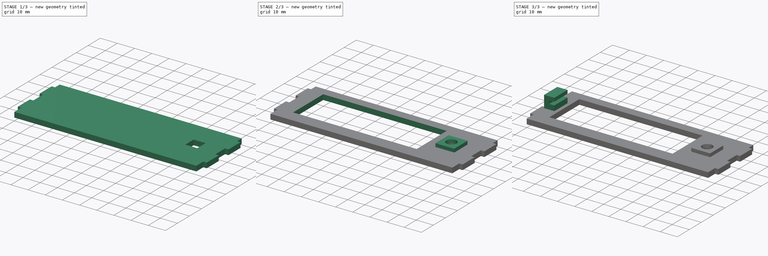
[diagram: build sequence overview — one tinted view per stage of 3, left to right]
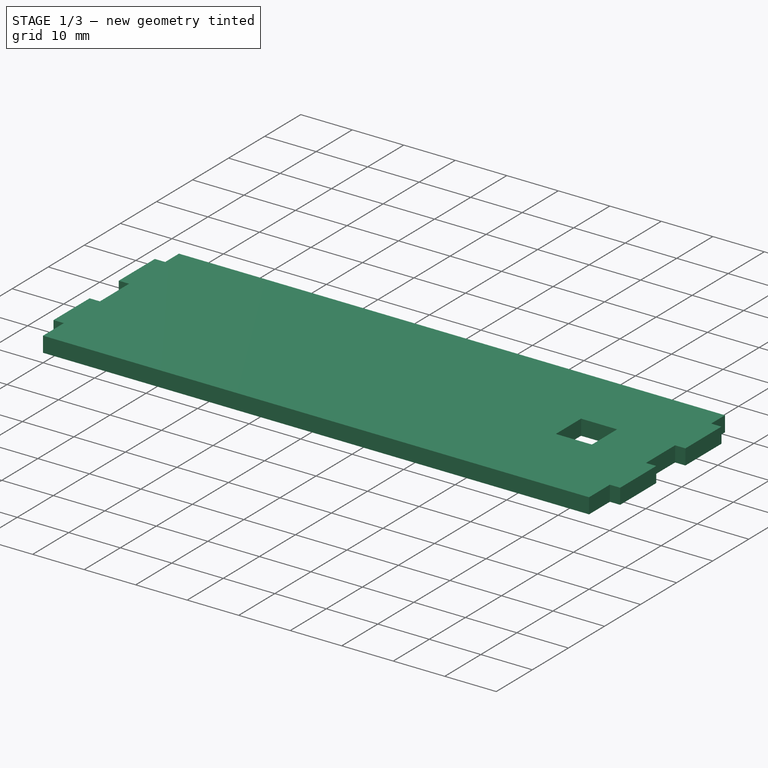
[diagram: stage 1 of 3 — iso view after this stage's code; geometry added in this stage tinted green]
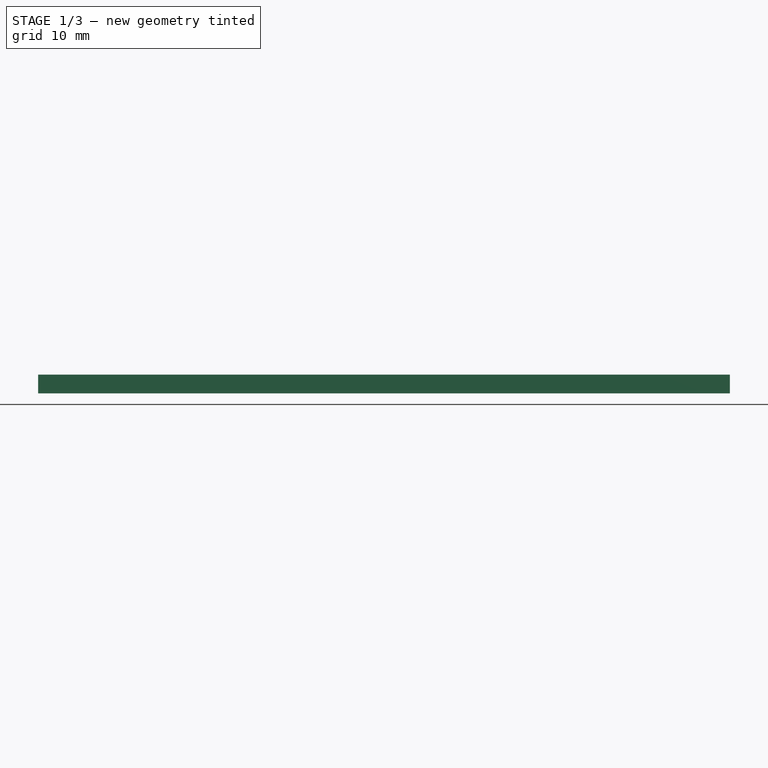
[diagram: stage 1 of 3 — front view after this stage's code; geometry added in this stage tinted green]
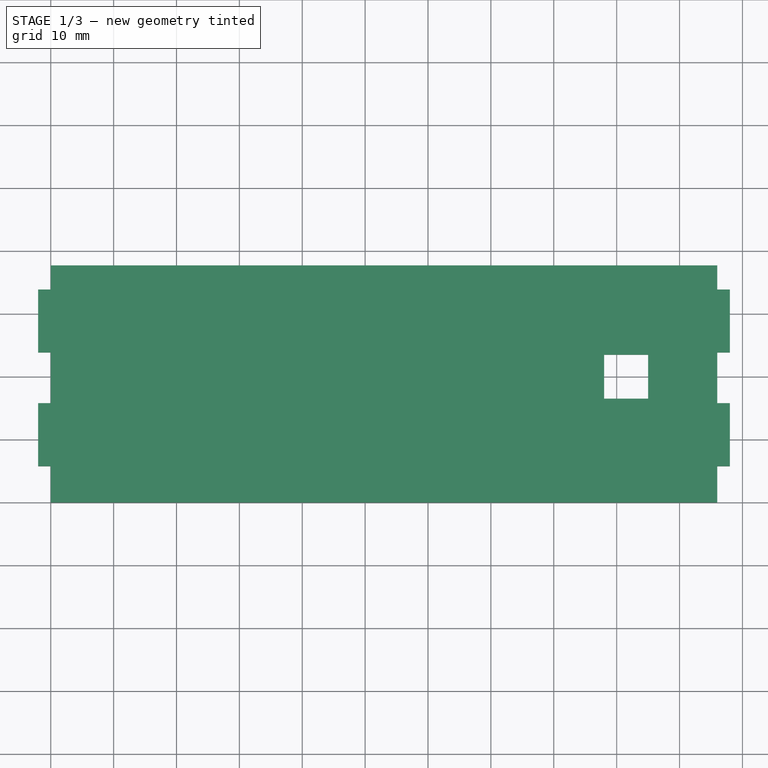
[diagram: stage 1 of 3 — top view after this stage's code; geometry added in this stage tinted green]
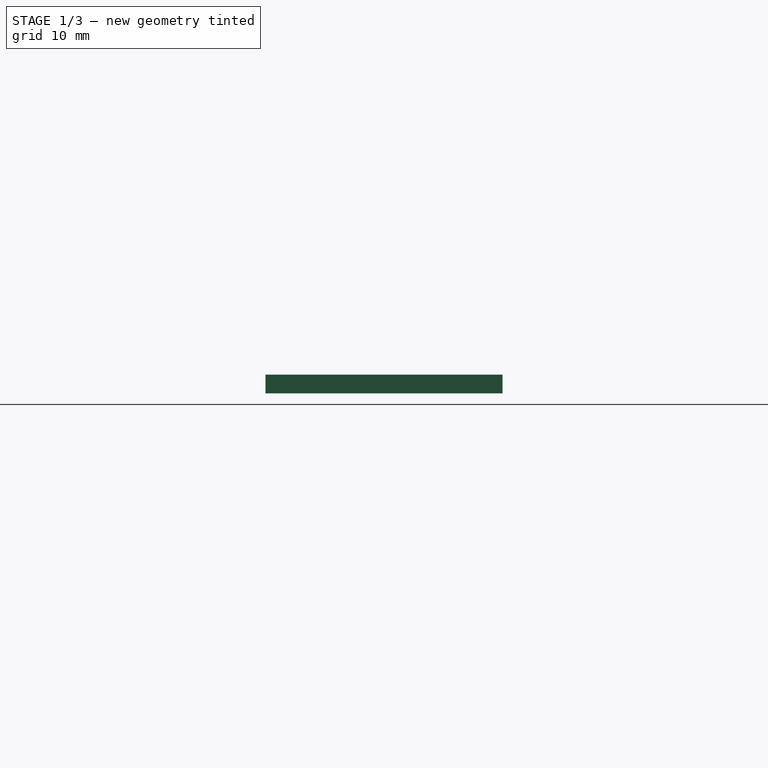
[diagram: stage 1 of 3 — right view after this stage's code; geometry added in this stage tinted green]
FCSTD DOCUMENT  (FreeCAD 0.18R16131 (Git))
Label: Face
License: All rights reserved
LicenseURL: http://en.wikipedia.org/wiki/All_rights_reserved
objects: Sketcher::SketchObject×6, PartDesign::Pad×3, PartDesign::Pocket×3, Spreadsheet::Sheet×1, PartDesign::Body×1
note: 19 computed .brp shape members not serialized (recipe doc carries the construction recipe); baked Part::Feature solids carry a one-line shape summary decoded from their .brp

FEATURE [Spreadsheet::Sheet] Spreadsheet  label="Parameters"
  cells = A1=Main Body; D1=Arduino Nano; A2=shell; B2(shell)=2; D2=usb_width; E2=10; A3=lenX; B3(lenX)=110; D3=usb_height; E3=6; A4=lenY; B4(lenY)=140; D4=usb_upto; E4=16; A5=lenZ; B5(lenZ)=25; D5=width; E5=18; A6=front_fillet_radius; B6=3; A7=base_fillet_radius; B7=45; D7=Button; D8=width; E8(button_width)=6; A9=Screen; D9=height; E9(button_height)=3; A10=height; B10(screen_height)=40; A11=width; B11(screen_width)=80; A12=pcb_thickness; B12(screen_pcb_thickness)=2; A13=extra_thickness; B13(screen_extra_thickness)=3; A14=border; B14(screen_border)=7; A15=cutout_width; B15(screen_cutout_width)=72; A16=cutout_height; B16(screen_cutout_height)=25; A17=angle; B17(screen_angle)=30; A18=tab_spacing; B18(screen_tab_spacing)=7; A19=plate_center; B19=115; A20=tab_height; B20(screen_tab_height)=3; A21=tab_width; B21(screen_tab_width)=10; A23=M4 Screw; A24=head_diam; B24=9; A25=head_height; B25=4.4; A26=thru_diam; B26=5; A27=M5 Screw; A28=head_diam; B28=10; A29=head_height; B29=5.4; A30=thru_diam; B30=6.25; A32=TAL220; A33=hole_spacing; B33=15; A34=standoff_height; B34=10; A35=to_center; B35=62.5; C35=Measured from first M5 to between the 2 m4s; A37=TAL221; A38=hole_spacing; B38=6
FEATURE [Sketcher::SketchObject] Sketch
  MapMode = 5
  Support = -> [XY_Plane]
  expr: Constraints[30] = Parameters.screen_tab_spacing / cos(Parameters.screen_angle)
  expr: Constraints[27] = Parameters.screen_tab_spacing / cos(Parameters.screen_angle) - Parameters.shell / cos(Parameters.screen_angle)
  expr: Constraints[17] = Parameters.screen_tab_width
  expr: Constraints[9] = Parameters.lenX - 2 * Parameters.shell
  expr: Constraints[16] = Parameters.shell
  expr: Constraints[10] = Parameters.screen_height - Parameters.shell / cos(Parameters.screen_angle)
  sketch-geometry (20):
    g0: LineSegment StartX=0 StartY=37.6906 StartZ=0 EndX=106 EndY=37.6906 EndZ=0
    g1: LineSegment StartX=106 StartY=37.6906 StartZ=0 EndX=106 EndY=33.8564 EndZ=0
    g2: LineSegment StartX=106 StartY=0 StartZ=0 EndX=0 EndY=0 EndZ=0
    g3: LineSegment StartX=0 StartY=0 StartZ=0 EndX=0 EndY=5.7735 EndZ=0
    g4: LineSegment StartX=-2 StartY=15.7735 StartZ=0 EndX=0 EndY=15.7735 EndZ=0
    g5: LineSegment StartX=0 StartY=5.7735 StartZ=0 EndX=-2 EndY=5.7735 EndZ=0
    g6: LineSegment StartX=-2 StartY=5.7735 StartZ=0 EndX=-2 EndY=15.7735 EndZ=0
    g7: LineSegment StartX=-2 StartY=33.8564 StartZ=0 EndX=0 EndY=33.8564 EndZ=0
    g8: LineSegment StartX=0 StartY=23.8564 StartZ=0 EndX=-2 EndY=23.8564 EndZ=0
    g9: LineSegment StartX=-2 StartY=23.8564 StartZ=0 EndX=-2 EndY=33.8564 EndZ=0
    g10: LineSegment StartX=0 StartY=33.8564 StartZ=0 EndX=0 EndY=37.6906 EndZ=0
    g11: LineSegment StartX=0 StartY=15.7735 StartZ=0 EndX=0 EndY=23.8564 EndZ=0
    g12: LineSegment StartX=106 StartY=33.8564 StartZ=0 EndX=108 EndY=33.8564 EndZ=0
    g13: LineSegment StartX=108 StartY=33.8564 StartZ=0 EndX=108 EndY=23.8564 EndZ=0
    g14: LineSegment StartX=108 StartY=23.8564 StartZ=0 EndX=106 EndY=23.8564 EndZ=0
    g15: LineSegment StartX=106 StartY=15.7735 StartZ=0 EndX=108 EndY=15.7735 EndZ=0
    g16: LineSegment StartX=108 StartY=15.7735 StartZ=0 EndX=108 EndY=5.7735 EndZ=0
    g17: LineSegment StartX=108 StartY=5.7735 StartZ=0 EndX=106 EndY=5.7735 EndZ=0
    g18: LineSegment StartX=106 StartY=5.7735 StartZ=0 EndX=106 EndY=0 EndZ=0
    g19: LineSegment StartX=106 StartY=23.8564 StartZ=0 EndX=106 EndY=15.7735 EndZ=0
  constraints (55):
    c: Coincident(g0,g1)
    c: Coincident(g18,g2)
    c: Coincident(g2,g3)
    c: Coincident(g10,g0)
    c: Horizontal(g0)
    c: Horizontal(g2)
    c: Vertical(g1)
    c: Vertical(g3)
    c: Coincident(g-1,g2)
    c: DistanceX(g0,g0) = 106
    c: DistanceY(g3,g10) = 37.6906
    c: Coincident(g5,g6)
    c: Coincident(g6,g4)
    c: Horizontal(g4)
    c: Horizontal(g5)
    c: Vertical(g6)
    c: DistanceX(g5,g5) = 2
    c: DistanceY(g6,g6) = 10
    c: Coincident(g8,g9)
    c: Coincident(g9,g7)
    c: Horizontal(g7)
    c: Horizontal(g8)
    c: Vertical(g9)
    c: Equal(g5,g8) = 2
    c: Equal(g6,g9) = 10
    c: Tangent(g3,g10)
    c: Tangent(g3,g11)
    c: DistanceY(g3,g3) = 5.7735
    c: Coincident(g5,g3)
    c: Coincident(g8,g11)
    c: DistanceY(g11,g11) = 8.0829
    c: Coincident(g4,g11)
    c: Coincident(g10,g7)
    c: Coincident(g12,g13)
    c: Coincident(g13,g14)
    c: Horizontal(g12)
    c: Horizontal(g14)
    c: Vertical(g13)
    c: Coincident(g15,g16)
    c: Coincident(g16,g17)
    c: Horizontal(g15)
    c: Horizontal(g17)
    c: Vertical(g16)
    c: Coincident(g19,g15)
    c: Tangent(g1,g18)
    c: Coincident(g19,g14)
    c: Tangent(g1,g19)
    c: Equal(g7,g12)
    c: Coincident(g12,g1)
    c: Equal(g13,g9)
    c: Equal(g19,g11)
    c: Equal(g15,g14)
    c: Equal(g16,g13)
    c: Equal(g18,g3)
    c: Coincident(g17,g18)
FEATURE [PartDesign::Pad] Pad  label="Main Body"
  Length = 3
  Length2 = 100
  Profile = -> Sketch
  Reversed = true
  Type = 0
  expr: Length = Parameters.screen_tab_height
FEATURE [Sketcher::SketchObject] Sketch001
  MapMode = 5
  Support = -> [XY_Plane]
  expr: Constraints[11] = (Parameters.screen_height - Parameters.button_width - 1) / 2
  expr: Constraints[10] = Parameters.lenX - 15
  expr: Constraints[8] = Parameters.button_width + 1
  sketch-geometry (4):
    g0: LineSegment StartX=88 StartY=23.5 StartZ=0 EndX=95 EndY=23.5 EndZ=0
    g1: LineSegment StartX=95 StartY=23.5 StartZ=0 EndX=95 EndY=16.5 EndZ=0
    g2: LineSegment StartX=95 StartY=16.5 StartZ=0 EndX=88 EndY=16.5 EndZ=0
    g3: LineSegment StartX=88 StartY=16.5 StartZ=0 EndX=88 EndY=23.5 EndZ=0
  constraints (12):
    c: Coincident(g0,g1)
    c: Coincident(g1,g2)
    c: Coincident(g2,g3)
    c: Coincident(g3,g0)
    c: Horizontal(g0)
    c: Horizontal(g2)
    c: Vertical(g1)
    c: Vertical(g3)
    c: DistanceX(g0,g0) = 7
    c: Equal(g3,g0)
    c: DistanceX(g-1,g0) = 95
    c: DistanceY(g-1,g2) = 16.5
FEATURE [PartDesign::Pocket] Pocket  label="Button Cutout"
  BaseFeature = -> Pad
  Length = 3
  Length2 = 100
  Profile = -> Sketch001
  Type = 0
  expr: Length = Parameters.screen_tab_height
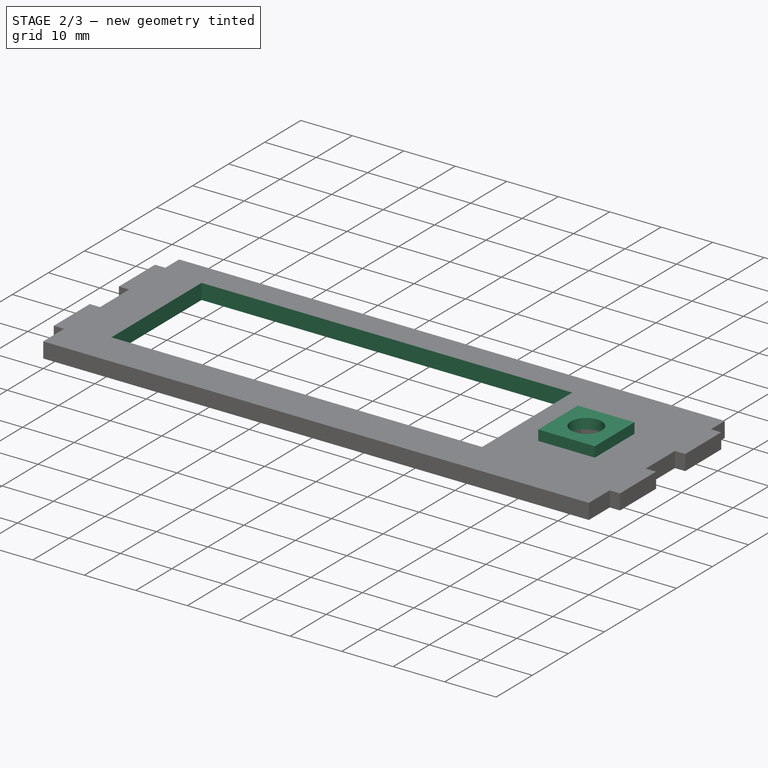
[diagram: stage 2 of 3 — iso view after this stage's code; geometry added in this stage tinted green]
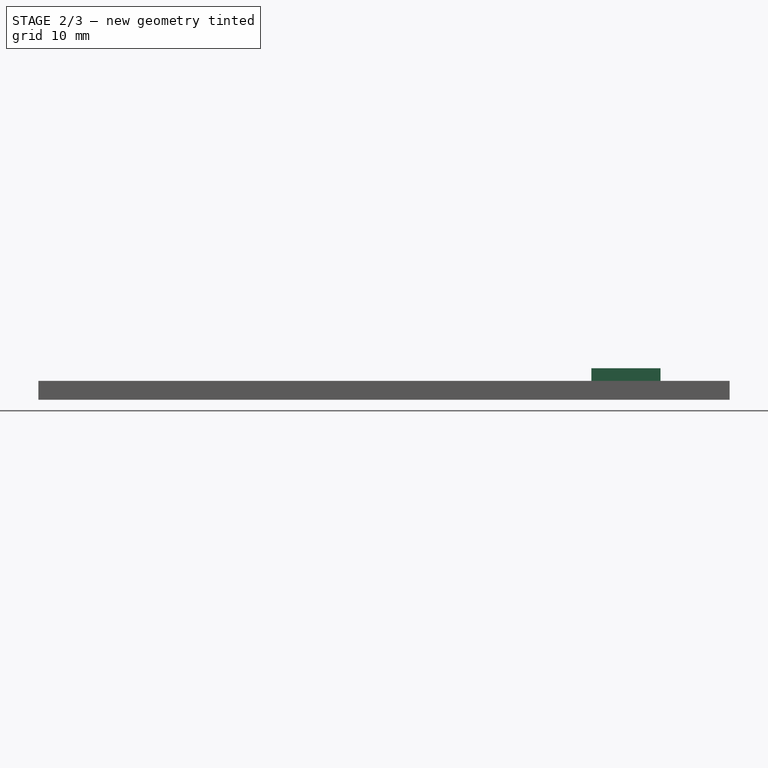
[diagram: stage 2 of 3 — front view after this stage's code; geometry added in this stage tinted green]
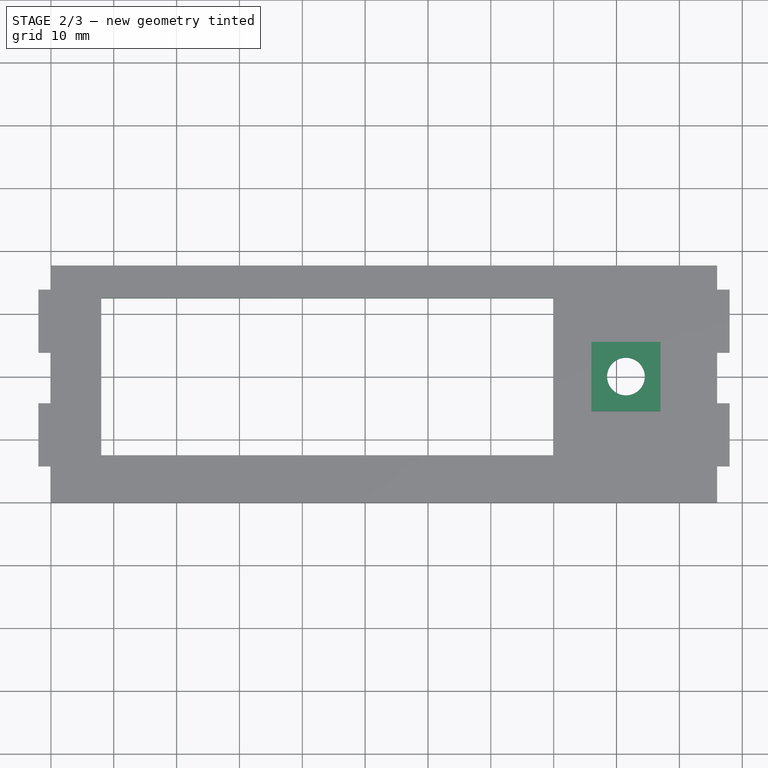
[diagram: stage 2 of 3 — top view after this stage's code; geometry added in this stage tinted green]
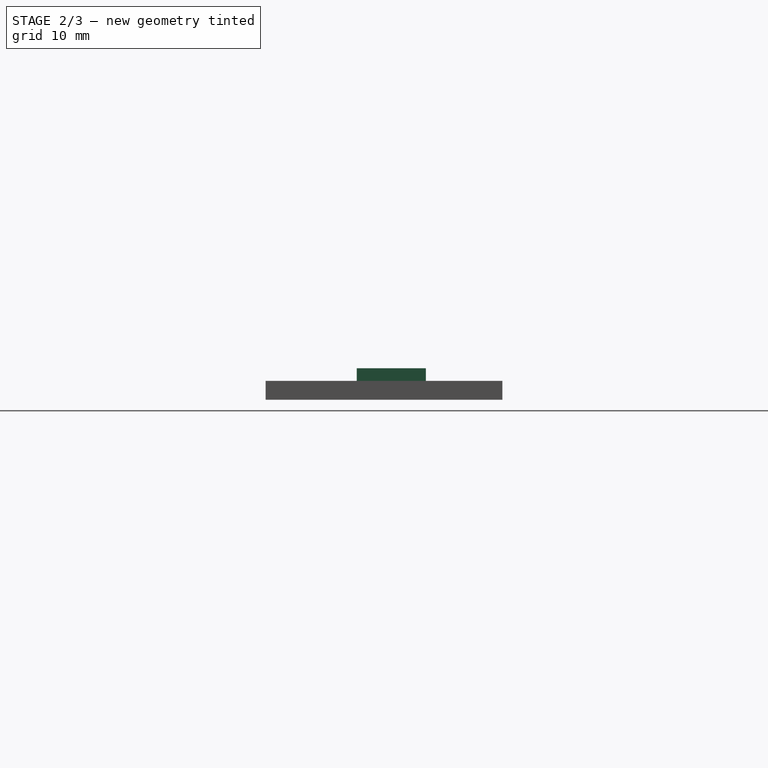
[diagram: stage 2 of 3 — right view after this stage's code; geometry added in this stage tinted green]
FEATURE [Sketcher::SketchObject] Sketch002
  MapMode = 5
  Support = -> [XY_Plane]
  expr: Constraints[15] = Parameters.button_width + 1 + Parameters.shell * 2
  expr: Constraints[2] = Parameters.lenX - 15 - (Parameters.button_width + 1) / 2
  expr: Constraints[1] = Parameters.screen_height / 2
  expr: Constraints[0] = Parameters.button_width
  sketch-geometry (6):
    g0: Circle CenterX=91.5 CenterY=20 CenterZ=0 NormalX=0 NormalY=0 NormalZ=1 AngleXU=0 Radius=3
    g1: LineSegment StartX=97 StartY=25.5 StartZ=0 EndX=86 EndY=25.5 EndZ=0
    g2: LineSegment StartX=86 StartY=25.5 StartZ=0 EndX=86 EndY=14.5 EndZ=0
    g3: LineSegment StartX=86 StartY=14.5 StartZ=0 EndX=97 EndY=14.5 EndZ=0
    g4: LineSegment StartX=97 StartY=14.5 StartZ=0 EndX=97 EndY=25.5 EndZ=0
    g5: Circle [constr] CenterX=91.5 CenterY=20 CenterZ=0 NormalX=0 NormalY=0 NormalZ=1 AngleXU=0 Radius=7.77817
  constraints (17):
    c: Diameter(g0) = 6
    c: DistanceY(g-1,g0) = 20
    c: DistanceX(g-1,g0) = 91.5
    c: Coincident(g1,g2)
    c: Coincident(g2,g3)
    c: Coincident(g3,g4)
    c: Coincident(g4,g1)
    c: Equal(g1,g2)
    c: Equal(g1,g3)
    c: Equal(g1,g4)
    c: PointOnObject(g1,g5)
    c: PointOnObject(g2,g5)
    c: PointOnObject(g3,g5)
    c: PointOnObject(g4,g5)
    c: Horizontal(g1)
    c: DistanceX(g1,g1) = 11
    c: Coincident(g5,g0)
FEATURE [PartDesign::Pad] Pad001  label="Button Holder"
  BaseFeature = -> Pocket
  Length = 2
  Length2 = 100
  Profile = -> Sketch002
  Type = 0
  expr: Length = Parameters.shell
FEATURE [Sketcher::SketchObject] Sketch003
  MapMode = 5
  Support = -> [XY_Plane]
  expr: Constraints[11] = Parameters.screen_width
  expr: Constraints[10] = (Parameters.screen_height - Parameters.screen_cutout_height) / 2
  expr: Constraints[9] = Parameters.screen_cutout_height
  expr: Constraints[8] = Parameters.screen_cutout_width
  sketch-geometry (4):
    g0: LineSegment StartX=8 StartY=32.5 StartZ=0 EndX=80 EndY=32.5 EndZ=0
    g1: LineSegment StartX=80 StartY=32.5 StartZ=0 EndX=80 EndY=7.5 EndZ=0
    g2: LineSegment StartX=80 StartY=7.5 StartZ=0 EndX=8 EndY=7.5 EndZ=0
    g3: LineSegment StartX=8 StartY=7.5 StartZ=0 EndX=8 EndY=32.5 EndZ=0
  constraints (12):
    c: Coincident(g0,g1)
    c: Coincident(g1,g2)
    c: Coincident(g2,g3)
    c: Coincident(g3,g0)
    c: Horizontal(g0)
    c: Horizontal(g2)
    c: Vertical(g1)
    c: Vertical(g3)
    c: DistanceX(g0,g0) = 72
    c: DistanceY(g1,g1) = 25
    c: DistanceY(g-1,g2) = 7.5
    c: DistanceX(g-1,g1) = 80
FEATURE [PartDesign::Pocket] Pocket001
  BaseFeature = -> Pad001
  Length = 3
  Length2 = 100
  Profile = -> Sketch003
  Type = 0
  expr: Length = Parameters.screen_tab_height
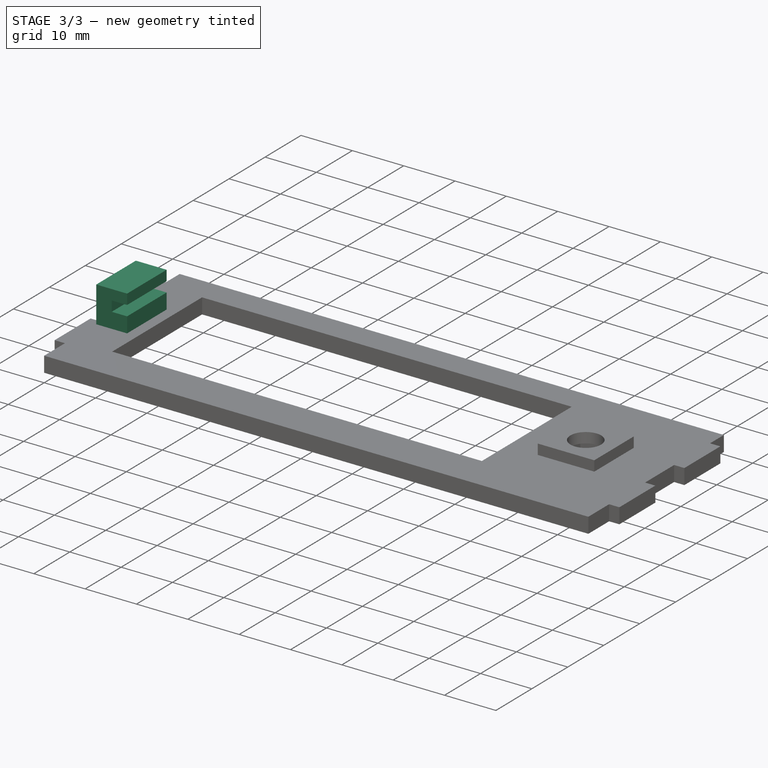
[diagram: stage 3 of 3 — iso view after this stage's code; geometry added in this stage tinted green]
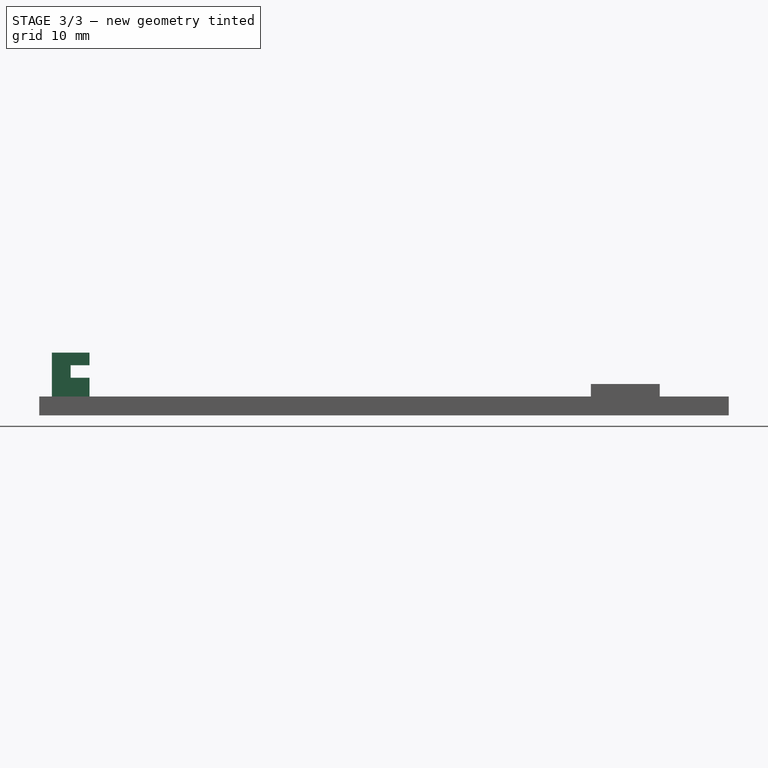
[diagram: stage 3 of 3 — front view after this stage's code; geometry added in this stage tinted green]
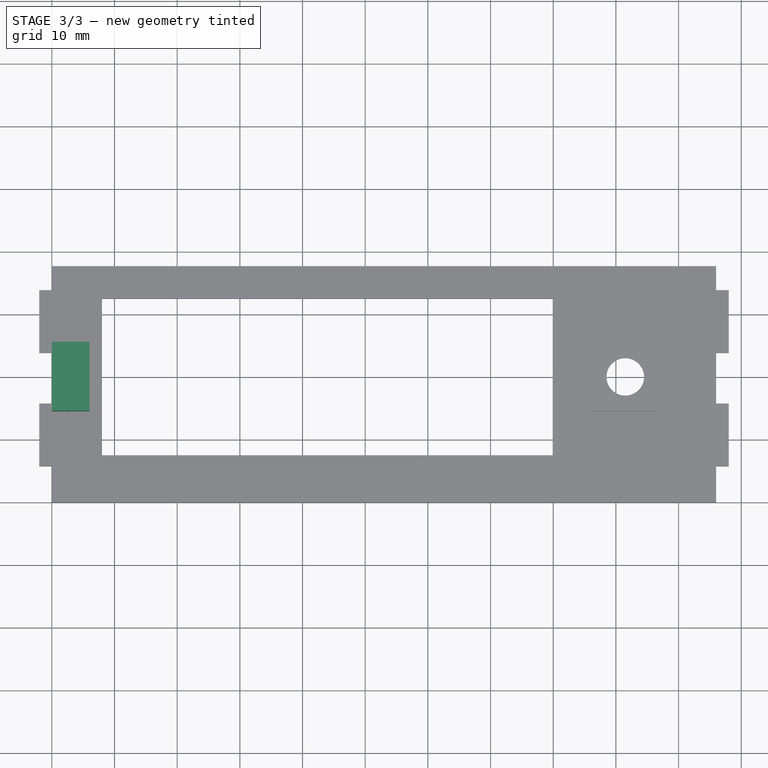
[diagram: stage 3 of 3 — top view after this stage's code; geometry added in this stage tinted green]
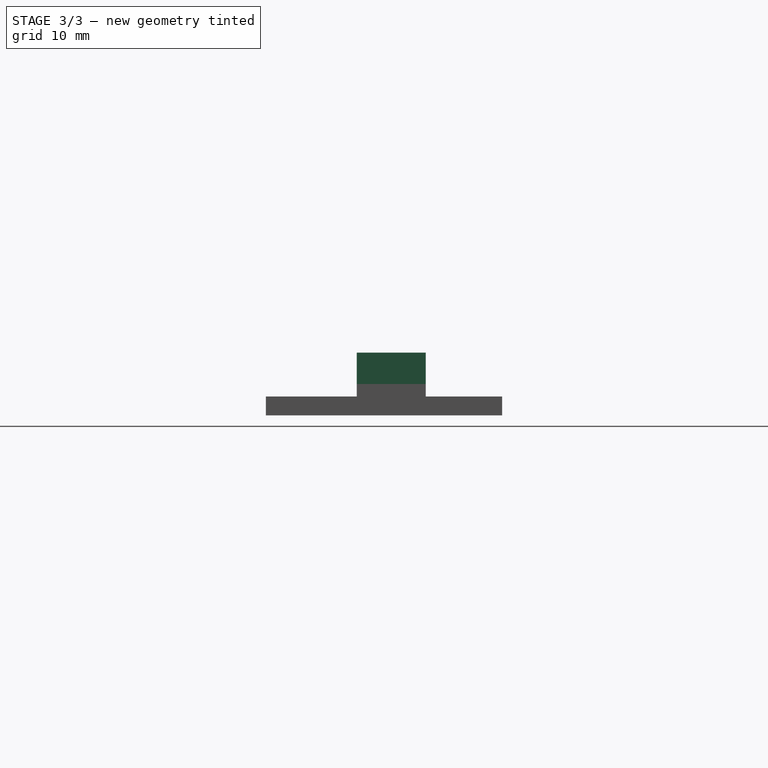
[diagram: stage 3 of 3 — right view after this stage's code; geometry added in this stage tinted green]
FEATURE [Sketcher::SketchObject] Sketch004
  MapMode = 5
  Support = -> [XY_Plane]
  expr: Constraints[11] = Parameters.screen_width - Parameters.screen_cutout_width - 2
  expr: Constraints[10] = (Parameters.screen_height - (Parameters.button_width + 1 + Parameters.shell * 2)) / 2
  expr: Constraints[9] = Parameters.button_width + 1 + Parameters.shell * 2
  expr: Constraints[8] = Parameters.shell + 6 - 2
  sketch-geometry (4):
    g0: LineSegment StartX=0 StartY=25.5 StartZ=0 EndX=6 EndY=25.5 EndZ=0
    g1: LineSegment StartX=6 StartY=25.5 StartZ=0 EndX=6 EndY=14.5 EndZ=0
    g2: LineSegment StartX=6 StartY=14.5 StartZ=0 EndX=0 EndY=14.5 EndZ=0
    g3: LineSegment StartX=0 StartY=14.5 StartZ=0 EndX=0 EndY=25.5 EndZ=0
  constraints (12):
    c: Coincident(g0,g1)
    c: Coincident(g1,g2)
    c: Coincident(g2,g3)
    c: Coincident(g3,g0)
    c: Horizontal(g0)
    c: Horizontal(g2)
    c: Vertical(g1)
    c: Vertical(g3)
    c: DistanceX(g2,g2) = 6
    c: DistanceY(g1,g1) = 11
    c: DistanceY(g-1,g2) = 14.5
    c: DistanceX(g-1,g1) = 6
FEATURE [PartDesign::Pad] Pad002
  BaseFeature = -> Pocket001
  Length = 7
  Length2 = 100
  Profile = -> Sketch004
  Type = 0
  expr: Length = Parameters.screen_extra_thickness + Parameters.screen_pcb_thickness + Parameters.shell
FEATURE [Sketcher::SketchObject] Sketch005
  MapMode = 5
  Placement = pos=(6,0,0) rot=(0.57735,0.57735,0.57735;2.0944rad)
  Support = -> [Pad002]
  expr: Constraints[11] = Parameters.screen_extra_thickness
  expr: Constraints[10] = (Parameters.screen_height - (Parameters.button_width + 1 + Parameters.shell * 2)) / 2
  expr: Constraints[9] = Parameters.screen_pcb_thickness
  expr: Constraints[8] = Parameters.button_width + 1 + Parameters.shell * 2
  sketch-geometry (4):
    g0: LineSegment StartX=14.5 StartY=5 StartZ=0 EndX=25.5 EndY=5 EndZ=0
    g1: LineSegment StartX=25.5 StartY=5 StartZ=0 EndX=25.5 EndY=3 EndZ=0
    g2: LineSegment StartX=25.5 StartY=3 StartZ=0 EndX=14.5 EndY=3 EndZ=0
    g3: LineSegment StartX=14.5 StartY=3 StartZ=0 EndX=14.5 EndY=5 EndZ=0
  constraints (12):
    c: Coincident(g0,g1)
    c: Coincident(g1,g2)
    c: Coincident(g2,g3)
    c: Coincident(g3,g0)
    c: Horizontal(g0)
    c: Horizontal(g2)
    c: Vertical(g1)
    c: Vertical(g3)
    c: DistanceX(g0,g0) = 11
    c: DistanceY(g1,g1) = 2
    c: DistanceX(g-1,g2) = 14.5
    c: DistanceY(g-1,g2) = 3
FEATURE [PartDesign::Pocket] Pocket002
  BaseFeature = -> Pad002
  Length = 3
  Length2 = 100
  Profile = -> Sketch005
  Type = 0
FEATURE [PartDesign::Body] Body
  Group = -> [Sketch,Pad,Sketch001,Pocket,Sketch002,Pad001,Sketch003,Pocket001,Sketch004,Pad002,Sketch005,Pocket002]
  Origin = -> Origin
  Tip = -> Pocket002
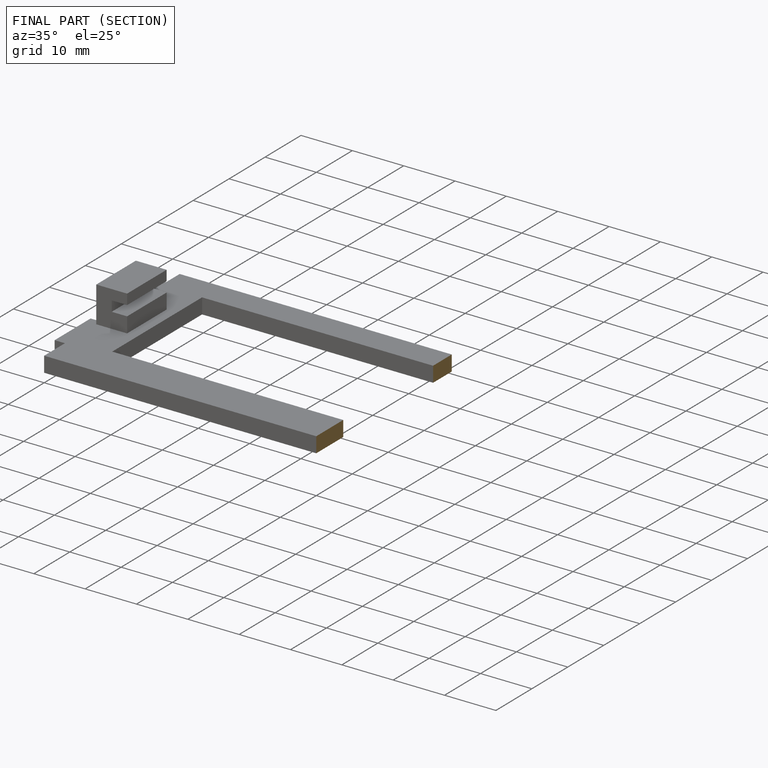
[diagram: finished part — half-section view (interior)]
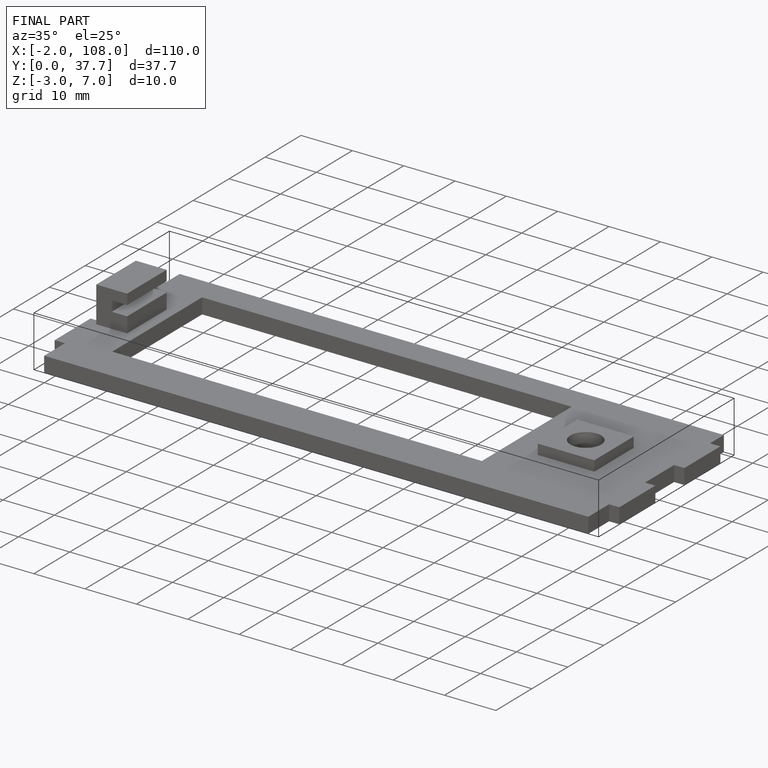
[diagram: finished part — iso view with bounding-box wireframe]
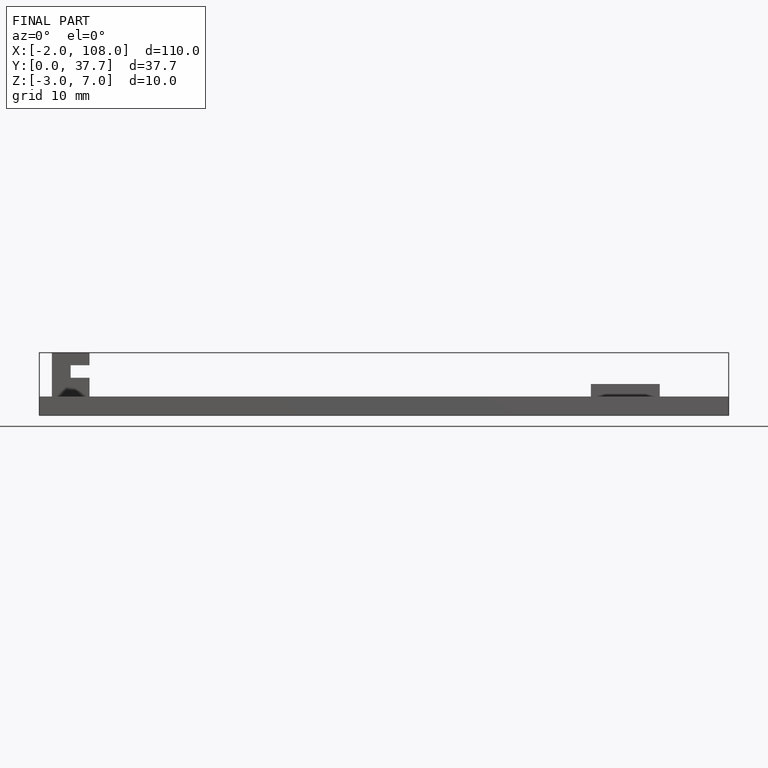
[diagram: finished part — front view with bounding-box wireframe]
